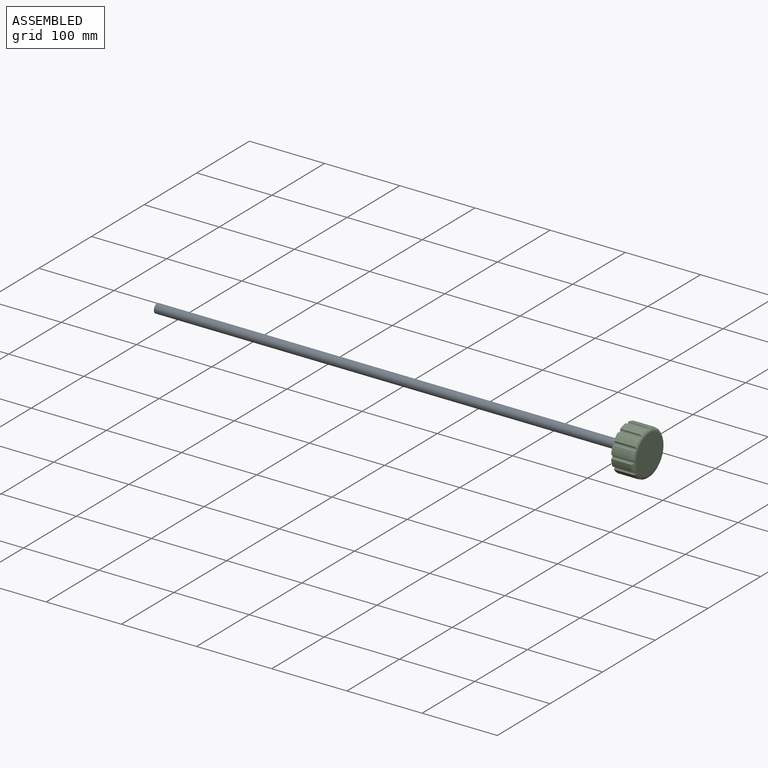
[diagram: assembled view]
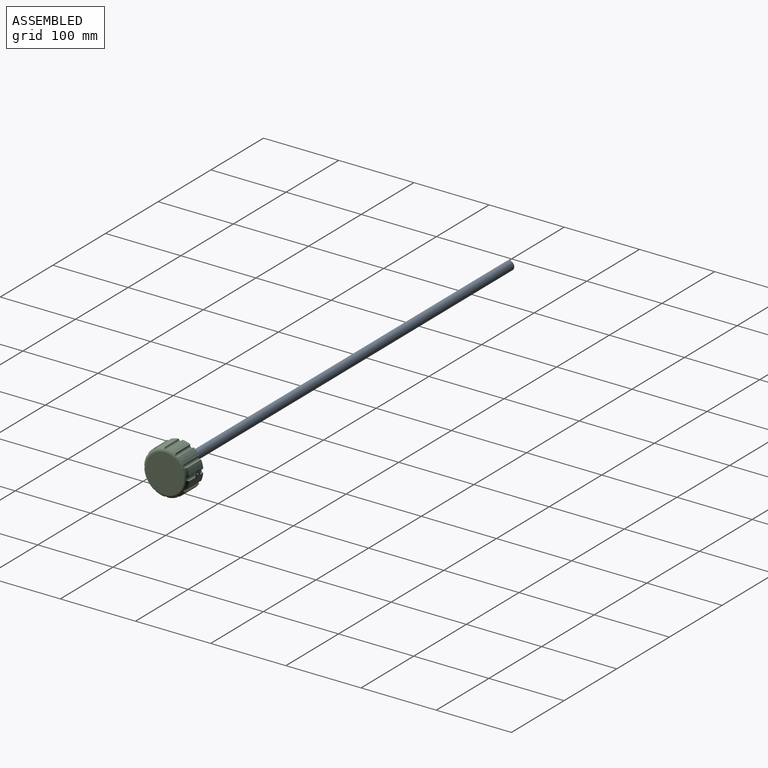
[diagram: assembled view, second angle]
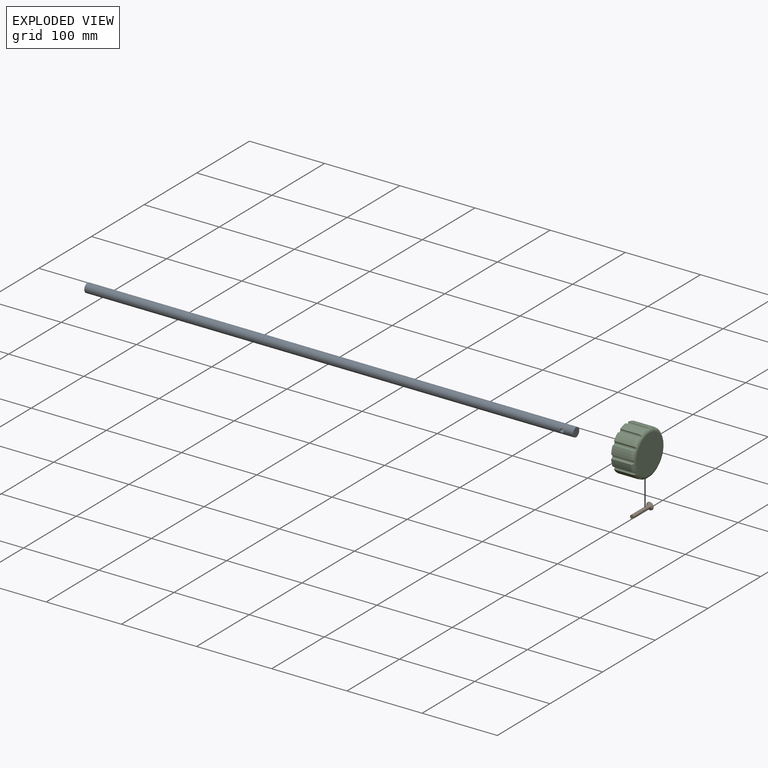
[diagram: exploded view]
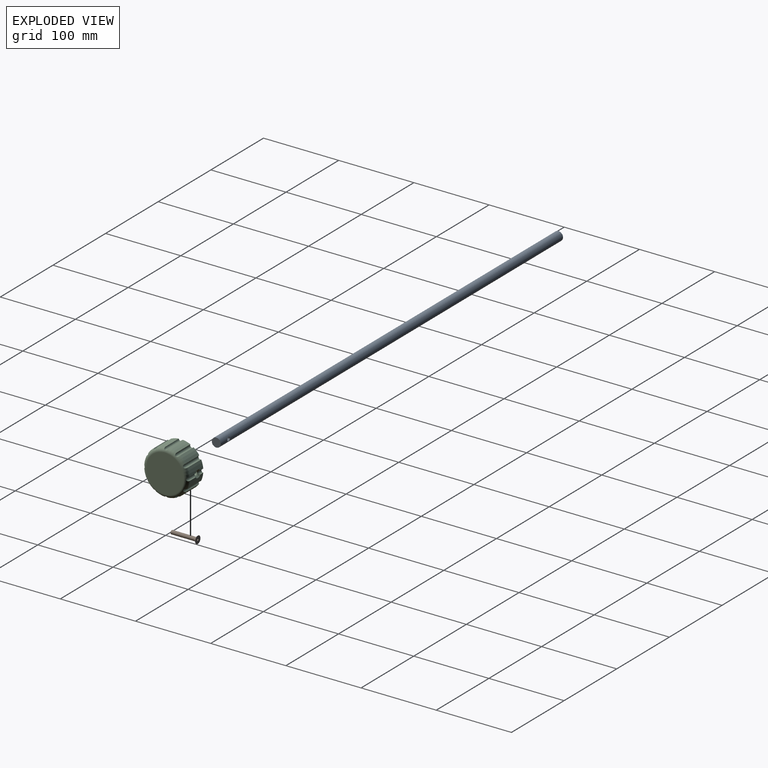
[diagram: exploded view, second angle]
ASSEMBLY  parts=3 mates=2
PART A: 4 faces, bbox 650x12x12 mm
  f0: cylinder r=6mm len=650mm, axis (-1,0,0), area 24464.2mm2, adj f1,f2,f3
  f1: plane 12x12mm, normal (1,0,0), area 113.1mm2, adj f0
  f2: plane 12x12mm, normal (-1,0,0), area 113.1mm2, adj f0
  f3: cylinder r=2.5mm len=12mm, axis (0,-1,0), area 180mm2, adj f0
PART B: 11 faces, bbox 34.5x10x10 mm
  f0: plane 10x10mm, normal (-1,0,0), area 73.1mm2, adj f3,f4,f5,f6,f7,f8,f9
  f1: plane 5x5mm, normal (1,0,0), area 19.6mm2, adj f2
  f2: cylinder r=2.5mm len=32mm, axis (-1,0,0), area 502.7mm2, adj f1,f3
  f3: cone r=5mm half-angle=45deg, axis (-1,0,0), area 83.3mm2, adj f0,f2
  f4: plane 2x1.25mm, normal (0,0.5,0.87), area 2.9mm2, adj f0,f5,f9,f10
  f5: plane 2x1.44mm, normal (0,1,0), area 2.9mm2, adj f0,f4,f6,f10
  f6: plane 2x1.25mm, normal (0,0.5,-0.87), area 2.9mm2, adj f0,f5,f7,f10
  f7: plane 2x1.25mm, normal (0,-0.5,-0.87), area 2.9mm2, adj f0,f6,f8,f10
  f8: plane 2x1.44mm, normal (0,-1,0), area 2.9mm2, adj f0,f7,f9,f10
  f9: plane 2x1.25mm, normal (0,-0.5,0.87), area 2.9mm2, adj f0,f4,f8,f10
  f10: plane 2.89x2.5mm, normal (-1,0,0), area 5.4mm2, adj f4,f5,f6,f7,f8,f9
PART C: 34 faces, bbox 30x64.9x64.9 mm
  f0: cylinder r=2.5mm len=6.9mm, axis (-1,0,0), area 49.2mm2, adj f1,f2,f14,f31,f32,f33
  f1: cylinder r=30mm len=25mm, axis (-1,0,0), area 252.2mm2, adj f0,f3,f14,f17,f25,f31
  f2: cylinder r=30mm len=25mm, axis (-1,0,0), area 252.2mm2, adj f0,f3,f14,f17,f24,f32
  f3: cylinder r=2.5mm len=16.23mm, axis (-1,0,0), area 113.7mm2, adj f1,f2,f17,f31,f32,f33
  f4: cylinder r=2.75mm len=21.81mm, axis (0,-1,0), area 371mm2, adj f18,f33
  f5: cylinder r=30mm len=25mm, axis (-1,0,0), area 267.7mm2, adj f14,f17,f26,f30
  f6: cylinder r=30mm len=25mm, axis (-1,0,0), area 267.7mm2, adj f14,f17,f29,f30
  f7: cylinder r=30mm len=25mm, axis (-1,0,0), area 267.7mm2, adj f14,f17,f28,f29
  f8: cylinder r=30mm len=25mm, axis (-1,0,0), area 267.7mm2, adj f14,f17,f27,f28
  f9: cylinder r=30mm len=25mm, axis (-1,0,0), area 267.7mm2, adj f14,f17,f25,f26
  f10: cylinder r=30mm len=25mm, axis (-1,0,0), area 267.7mm2, adj f14,f17,f23,f24
  f11: cylinder r=30mm len=25mm, axis (-1,0,0), area 267.7mm2, adj f14,f17,f22,f23
  f12: cylinder r=30mm len=25mm, axis (-1,0,0), area 267.7mm2, adj f14,f17,f21,f22
  f13: cylinder r=30mm len=25mm, axis (-1,0,0), area 267.7mm2, adj f14,f17,f20,f21
  f14: plane 59.79x59.79mm, normal (-1,0,0), area 2598.6mm2, adj f0,f1,f2,f5,f6,f7,f8,f9
  f15: cylinder r=30mm len=25mm, axis (-1,0,0), area 267.7mm2, adj f14,f17,f20,f27
  f16: plane 50x50mm, normal (1,0,0), area 1963.5mm2, adj f17
  f17: torus R=25mm, axis (1,0,0), area 1122mm2, adj f1,f2,f3,f5,f6,f7,f8,f9
  f18: cylinder r=6mm len=25mm, axis (-1,0,0), area 918mm2, adj f4,f14,f19
  f19: plane 12x12mm, normal (-1,0,0), area 113.1mm2, adj f18
  f20: cylinder r=2.5mm len=29.33mm, axis (-1,0,0), area 217.4mm2, adj f13,f14,f15,f17
  f21: cylinder r=2.5mm len=29.33mm, axis (-1,0,0), area 217.4mm2, adj f12,f13,f14,f17
  f22: cylinder r=2.5mm len=29.33mm, axis (-1,0,0), area 217.4mm2, adj f11,f12,f14,f17
  f23: cylinder r=2.5mm len=29.33mm, axis (-1,0,0), area 217.4mm2, adj f10,f11,f14,f17
  f24: cylinder r=2.5mm len=29.33mm, axis (-1,0,0), area 217.4mm2, adj f2,f10,f14,f17
  f25: cylinder r=2.5mm len=29.33mm, axis (-1,0,0), area 217.4mm2, adj f1,f9,f14,f17
  f26: cylinder r=2.5mm len=29.33mm, axis (-1,0,0), area 217.4mm2, adj f5,f9,f14,f17
  f27: cylinder r=2.5mm len=29.33mm, axis (-1,0,0), area 217.4mm2, adj f8,f14,f15,f17
  f28: cylinder r=2.5mm len=29.33mm, axis (-1,0,0), area 217.4mm2, adj f7,f8,f14,f17
  f29: cylinder r=2.5mm len=29.33mm, axis (-1,0,0), area 217.4mm2, adj f6,f7,f14,f17
  f30: cylinder r=2.5mm len=29.33mm, axis (-1,0,0), area 217.4mm2, adj f5,f6,f14,f17
  f31: cylinder r=5mm len=8.74mm, axis (0,1,0), area 3.3mm2, adj f0,f1,f3,f33
  f32: cylinder r=5mm len=8.74mm, axis (0,1,0), area 3.3mm2, adj f0,f2,f3,f33
  f33: cone r=2.5mm half-angle=45deg, axis (0,1,0), area 57.4mm2, adj f0,f3,f4,f31,f32
PLACE A rot(axis=(0,1,0),180deg) t=(430.42,24.01,-76.93)mm
PLACE B rot(axis=(-0.58,0.58,-0.58),120deg) t=(415.42,53.65,-76.93)mm
PLACE C t=(405.42,24.01,-76.93)mm
MATE fastened C.f18 <-> A.f0  axis (-1,0,0) through (430.42,24.01,-76.93)mm
MATE fastened B.f2 <-> C.f4  axis (0,1,0) through (415.42,51.15,-76.93)mm
